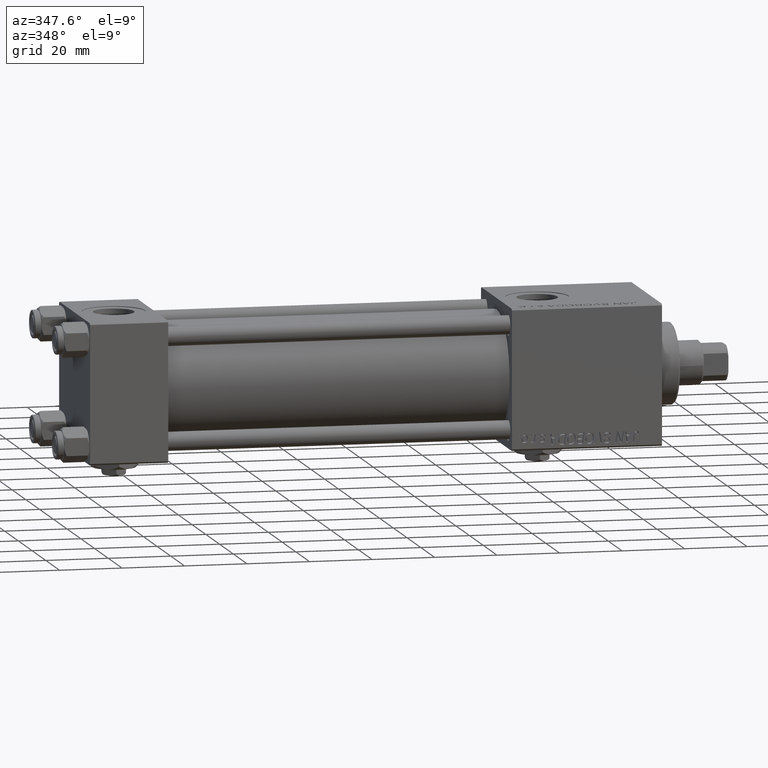
[diagram: clean part render]
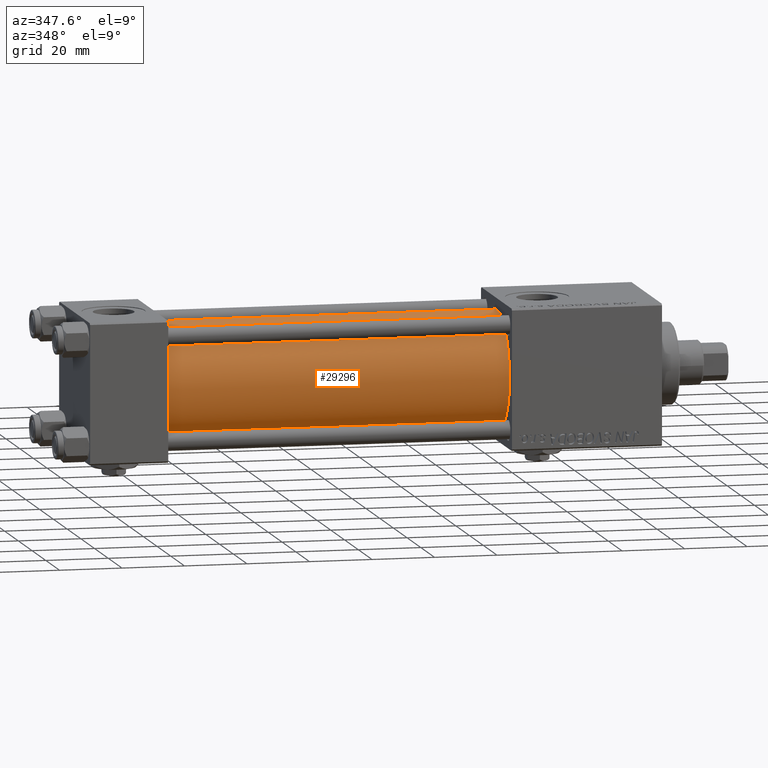
[diagram: same view with one face highlighted and labeled with its STEP entity id]
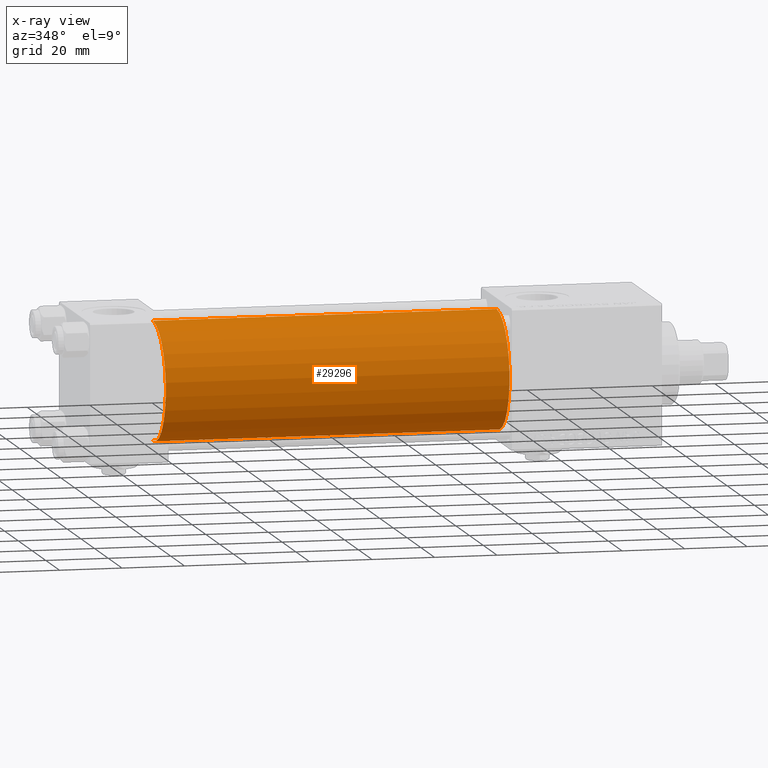
[diagram: x-ray of the same camera — body ghosted, the highlighted face saturated]
A machine part, auxiliary view. The second image highlights one B-rep face of the part: STEP entity #29296.
The next image is the same camera in x-ray: the body ghosted, the highlighted face saturated — about 0% of this face is hidden behind the body in this view.
In plain terms, the highlighted cylindrical surface (partial cylindrical patch) has radius 19 mm, axis along (-1, -0, -0).
Its self-contained STEP definition (entity closure, byte-faithful):
#31 = AXIS2_PLACEMENT_3D ( 'NONE', #18678, #39552, #22921 ) ;
#5584 = DIRECTION ( 'NONE',  ( -1.000000000000000000, -0.000000000000000000, -0.000000000000000000 ) ) ;
#8922 = CARTESIAN_POINT ( 'NONE',  ( 24.99999999999999289, -2.602085213965210642E-15, 0.000000000000000000 ) ) ;
#9260 = EDGE_LOOP ( 'NONE', ( #12417, #35409, #49174, #33187 ) ) ;
#10377 = CARTESIAN_POINT ( 'NONE',  ( 135.0000000000000000, -2.752562955852396712E-16, -19.00000000000000000 ) ) ;
#12417 = ORIENTED_EDGE ( 'NONE', *, *, #50806, .F. ) ;
#13561 = EDGE_CURVE ( 'NONE', #44076, #35243, #44514, .T. ) ;
#13927 = CARTESIAN_POINT ( 'NONE',  ( 24.99999999999999289, -2.752562955852396712E-16, -19.00000000000000000 ) ) ;
#14914 = VERTEX_POINT ( 'NONE', #34890 ) ;
#15194 = CARTESIAN_POINT ( 'NONE',  ( 24.99999999999999289, -2.602085213965210642E-15, 19.00000000000000000 ) ) ;
#17606 = DIRECTION ( 'NONE',  ( 1.000000000000000000, -0.000000000000000000, 0.000000000000000000 ) ) ;
#17711 = CARTESIAN_POINT ( 'NONE',  ( 135.0000000000000000, -2.602085213965210642E-15, 19.00000000000000000 ) ) ;
#17950 = EDGE_CURVE ( 'NONE', #14914, #44076, #25653, .T. ) ;
#18678 = CARTESIAN_POINT ( 'NONE',  ( 135.0000000000000000, -2.602085213965210642E-15, 0.000000000000000000 ) ) ;
#18760 = CYLINDRICAL_SURFACE ( 'NONE', #48080, 19.00000000000000000 ) ;
#21054 = CIRCLE ( 'NONE', #31, 19.00000000000000000 ) ;
#21125 = VECTOR ( 'NONE', #25181, 1000.000000000000000 ) ;
#21831 = DIRECTION ( 'NONE',  ( 0.000000000000000000, 0.000000000000000000, 1.000000000000000000 ) ) ;
#22921 = DIRECTION ( 'NONE',  ( 0.000000000000000000, 0.000000000000000000, -1.000000000000000000 ) ) ;
#25181 = DIRECTION ( 'NONE',  ( -1.000000000000000000, -0.000000000000000000, -0.000000000000000000 ) ) ;
#25653 = LINE ( 'NONE', #17711, #51959 ) ;
#25920 = FACE_OUTER_BOUND ( 'NONE', #9260, .T. ) ;
#29296 = ADVANCED_FACE ( 'NONE', ( #25920 ), #18760, .T. ) ;
#31021 = AXIS2_PLACEMENT_3D ( 'NONE', #8922, #17606, #21831 ) ;
#33113 = LINE ( 'NONE', #49215, #21125 ) ;
#33187 = ORIENTED_EDGE ( 'NONE', *, *, #13561, .T. ) ;
#33565 = VERTEX_POINT ( 'NONE', #10377 ) ;
#34890 = CARTESIAN_POINT ( 'NONE',  ( 135.0000000000000000, -2.602085213965210642E-15, 19.00000000000000000 ) ) ;
#35243 = VERTEX_POINT ( 'NONE', #13927 ) ;
#35409 = ORIENTED_EDGE ( 'NONE', *, *, #48091, .F. ) ;
#38588 = CARTESIAN_POINT ( 'NONE',  ( 135.0000000000000000, -2.602085213965210642E-15, 0.000000000000000000 ) ) ;
#39552 = DIRECTION ( 'NONE',  ( 1.000000000000000000, 0.000000000000000000, 0.000000000000000000 ) ) ;
#44076 = VERTEX_POINT ( 'NONE', #15194 ) ;
#44514 = CIRCLE ( 'NONE', #31021, 19.00000000000000000 ) ;
#46505 = DIRECTION ( 'NONE',  ( -1.000000000000000000, -0.000000000000000000, -0.000000000000000000 ) ) ;
#48080 = AXIS2_PLACEMENT_3D ( 'NONE', #38588, #46505, #50732 ) ;
#48091 = EDGE_CURVE ( 'NONE', #14914, #33565, #21054, .T. ) ;
#49174 = ORIENTED_EDGE ( 'NONE', *, *, #17950, .T. ) ;
#49215 = CARTESIAN_POINT ( 'NONE',  ( 135.0000000000000000, -2.752562955852396712E-16, -19.00000000000000000 ) ) ;
#50732 = DIRECTION ( 'NONE',  ( 0.000000000000000000, 0.000000000000000000, 1.000000000000000000 ) ) ;
#50806 = EDGE_CURVE ( 'NONE', #33565, #35243, #33113, .T. ) ;
#51959 = VECTOR ( 'NONE', #5584, 1000.000000000000000 ) ;